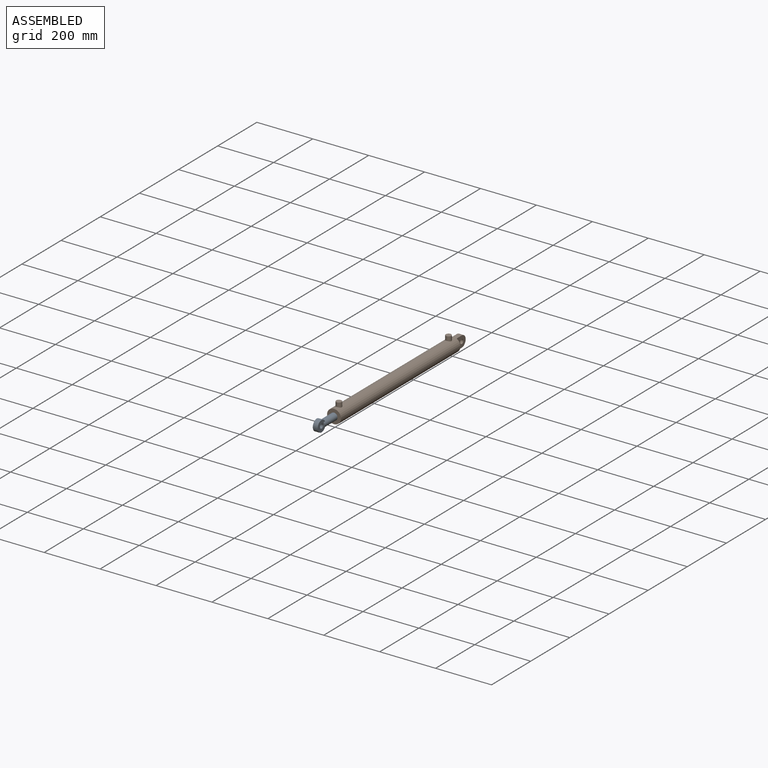
[diagram: assembled view]
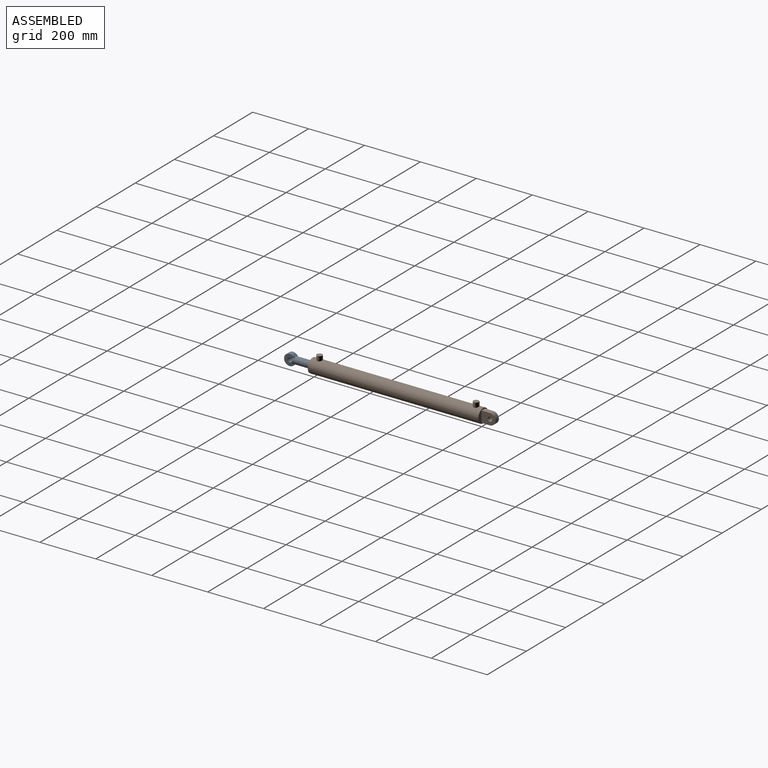
[diagram: assembled view, second angle]
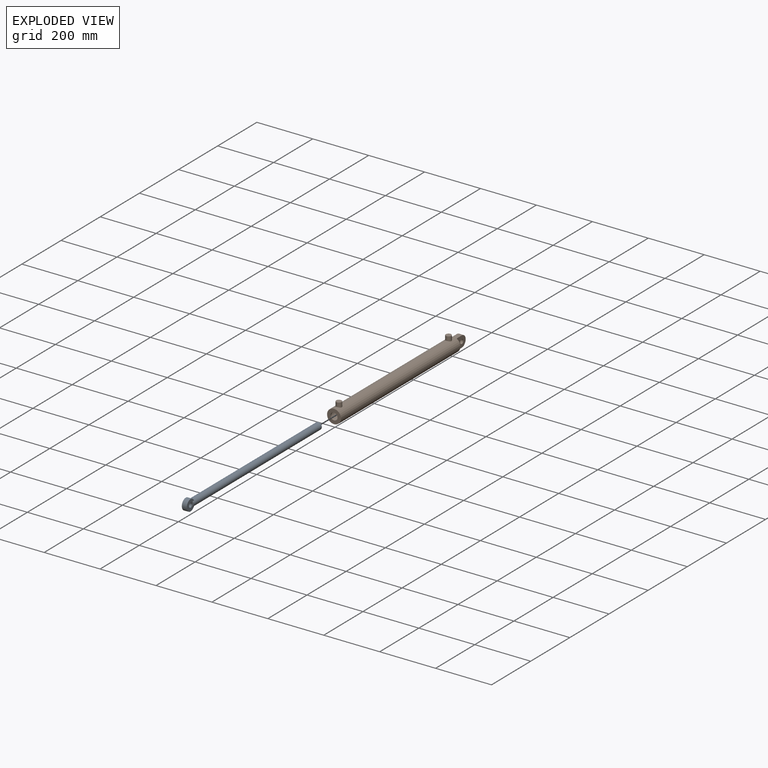
[diagram: exploded view]
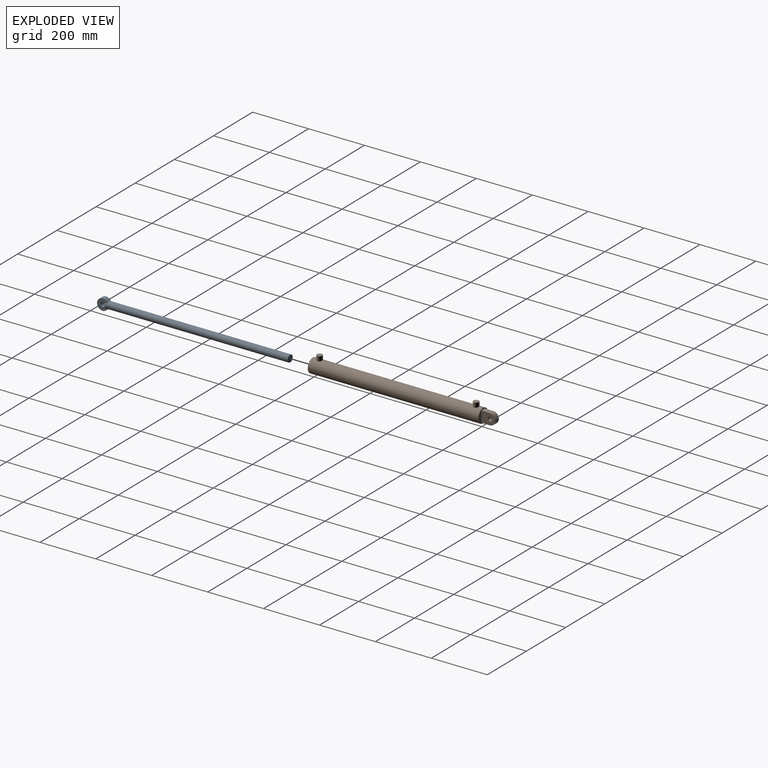
[diagram: exploded view, second angle]
ASSEMBLY  parts=2 mates=2
PART A: 8 faces, bbox 25x685x40 mm
  f0: plane 17.85x3.75mm, normal (0,-1,0), area 46.2mm2, adj f1,f6
  f1: cylinder r=12.5mm len=655mm, axis (0,1,0), area 51193mm2, adj f0,f2,f3,f4,f5,f6
  f2: plane 17.85x3.75mm, normal (0,-1,0), area 46.2mm2, adj f1,f5
  f3: plane 25x25mm, normal (0,1,0), area 490.9mm2, adj f1
  f4: cylinder r=20mm len=40mm, axis (-1,0,0), area 1774.3mm2, adj f1,f5,f6
  f5: plane 40x37.9mm, normal (1,0,0), area 889.3mm2, adj f1,f2,f4,f7
  f6: plane 40x37.9mm, normal (-1,0,0), area 889.3mm2, adj f0,f1,f4,f7
  f7: cylinder r=8mm len=17.5mm, axis (-1,0,0), area 879.6mm2, adj f5,f6
PART B: 17 faces, bbox 50x660x65 mm
  f0: plane 50x50mm, normal (0,1,0), area 1263.5mm2, adj f1,f2,f4,f6,f7
  f1: cylinder r=25mm len=610mm, axis (0,-1,0), area 95175.8mm2, adj f0,f10,f14,f16
  f2: plane 30x17.5mm, normal (0,0,-1), area 525mm2, adj f0,f3,f6,f7
  f3: cylinder r=20mm len=40mm, axis (-1,0,0), area 1099.6mm2, adj f2,f4,f6,f7
  f4: plane 30x17.5mm, normal (0,0,1), area 525mm2, adj f0,f3,f6,f7
  f5: cylinder r=8mm len=17.5mm, axis (-1,0,0), area 879.6mm2, adj f6,f7
  f6: plane 50x40mm, normal (1,0,0), area 1627.3mm2, adj f0,f2,f3,f4,f5
  f7: plane 50x40mm, normal (-1,0,0), area 1627.3mm2, adj f0,f2,f3,f4,f5
  f8: plane 40x40mm, normal (0,1,0), area 765.8mm2, adj f9,f12
  f9: cylinder r=12.5mm len=25mm, axis (0,1,0), area 392.7mm2, adj f8,f10
  f10: plane 50x50mm, normal (0,-1,0), area 1472.6mm2, adj f1,f9
  f11: plane 40x40mm, normal (0,-1,0), area 1256.6mm2, adj f12
  f12: cylinder r=20mm len=600mm, axis (0,-1,0), area 75398.2mm2, adj f8,f11
  f13: plane 20x20mm, normal (0,0,1), area 314.2mm2, adj f14
  f14: cylinder r=10mm len=20mm, axis (0,0,1), area 1007.4mm2, adj f1,f13
  f15: plane 20x20mm, normal (0,0,1), area 314.2mm2, adj f16
  f16: cylinder r=10mm len=20mm, axis (0,0,1), area 1007.4mm2, adj f1,f15
PLACE A t=(0,-16,0)mm
PLACE B at identity fixed
MATE slider A.f1 <-> B.f9  axis (0,1,0) through (0,256.5,0)mm
MATE cylindrical A.f1 <-> B.f9  axis (0,1,0) through (0,256.5,0)mm
